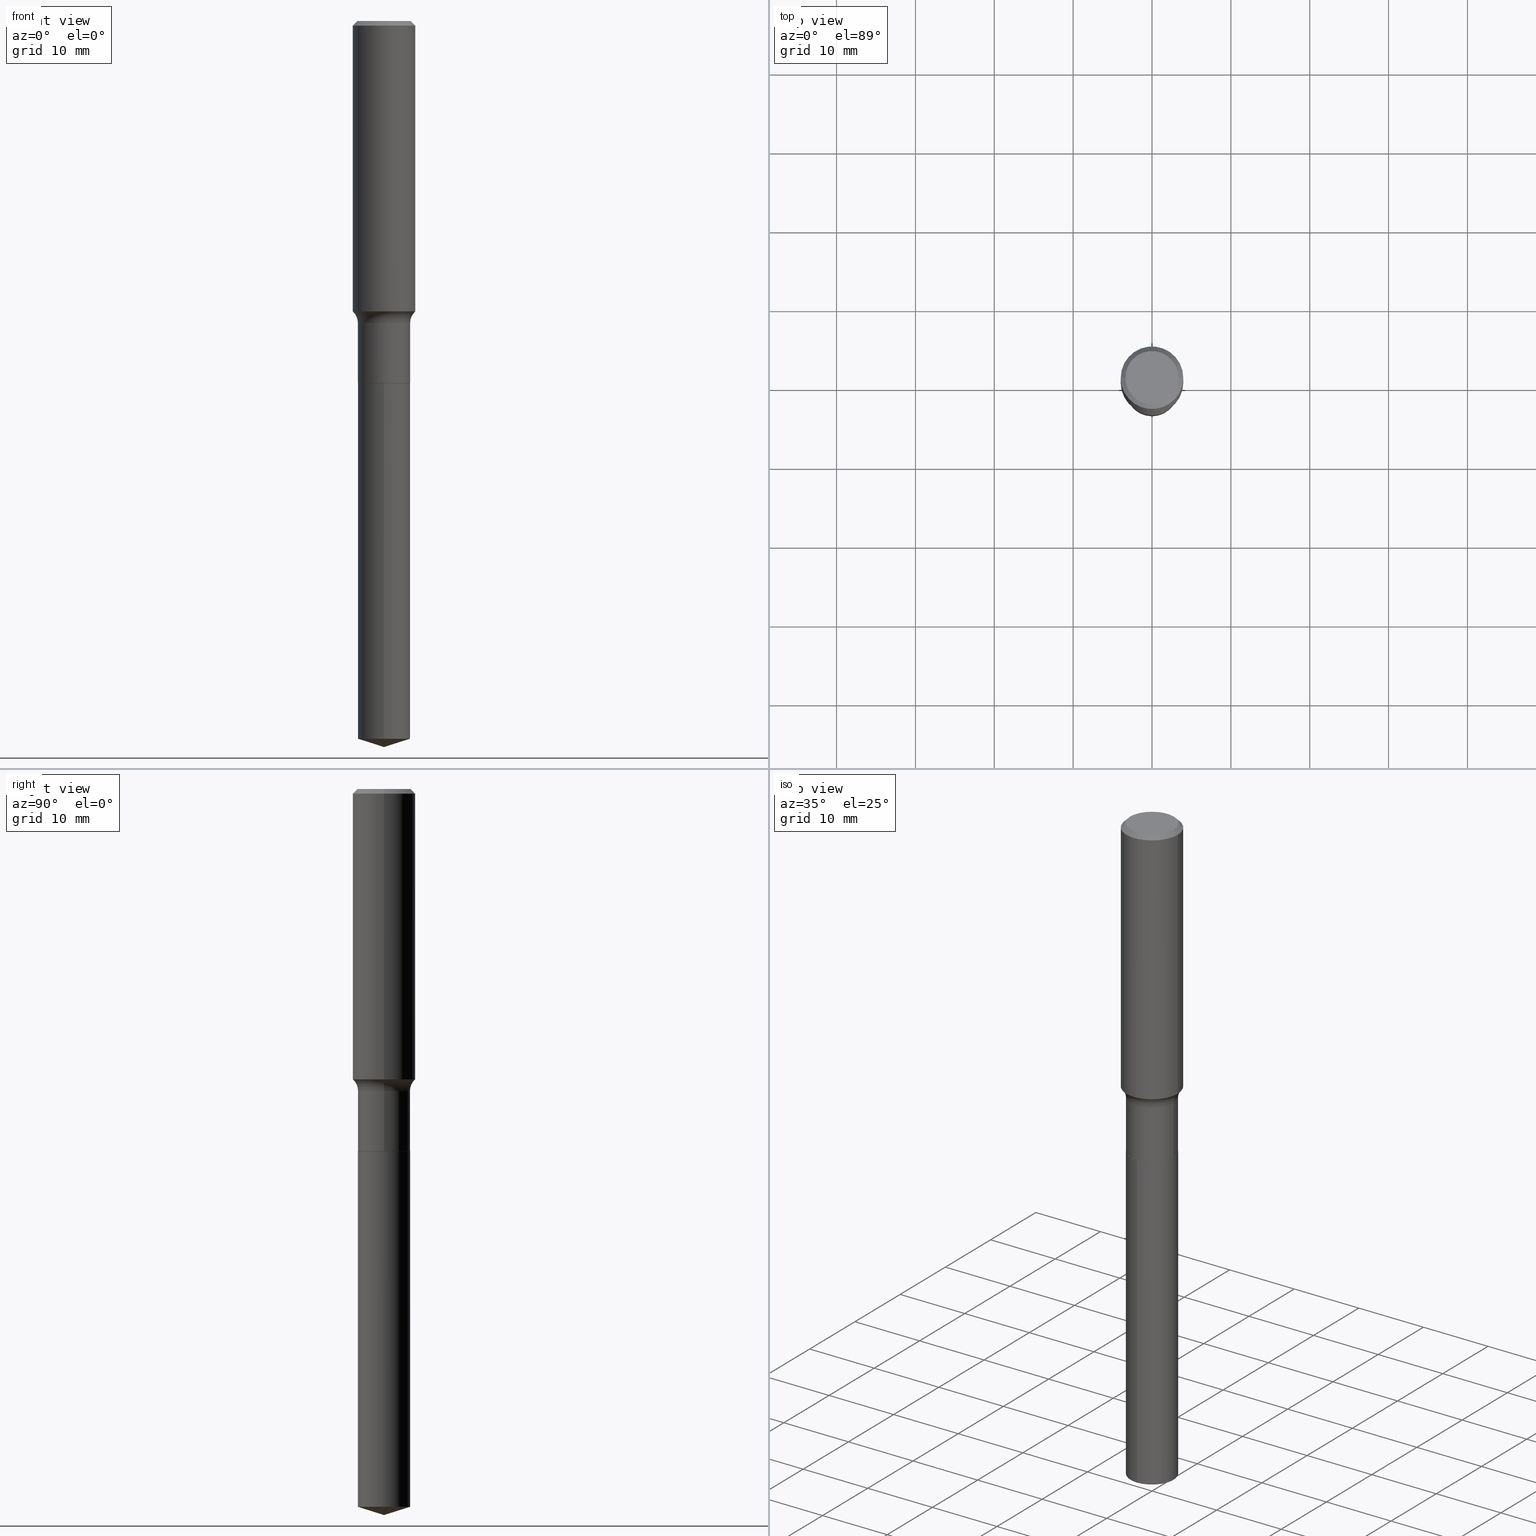
[diagram: canonical four-view strip — front | top / right | iso, engineering-drawing reading convention]
A machine part, canonical four-view strip (front | top / right | iso — engineering-drawing reading convention). The complete STEP part file that produces these views, byte-faithful:
ISO-10303-21;
HEADER;
FILE_DESCRIPTION (( 'STEP AP203' ),
    '1' );
FILE_NAME ('52341.STEP',
    '2024-04-19T13:47:22',
    ( '' ),
    ( '' ),
    'SwSTEP 2.0',
    'SolidWorks 2023',
    '' );
FILE_SCHEMA (( 'CONFIG_CONTROL_DESIGN' ));
ENDSEC;

DATA;
#1 = CALENDAR_DATE ( 2024, 19, 4 ) ;
#2 = DIRECTION ( 'NONE',  ( -2.445468197637385538E-29, 3.491482210318161491E-15, 1.000000000000000000 ) ) ;
#3 = AXIS2_PLACEMENT_3D ( 'NONE', #64, #370, #71 ) ;
#4 = CARTESIAN_POINT ( 'NONE',  ( 4.421163054702109447E-29, -6.312249112494524251E-15, -1.807900000000000507 ) ) ;
#5 = AXIS2_PLACEMENT_3D ( 'NONE', #278, #253, #20 ) ;
#6 = DIRECTION ( 'NONE',  ( 1.000000000000000000, -6.982962677686268288E-15, 4.876286914311434227E-29 ) ) ;
#7 = AXIS2_PLACEMENT_3D ( 'NONE', #289, #334, #328 ) ;
#8 = VECTOR ( 'NONE', #469, 39.37007874015748143 ) ;
#9 = CONICAL_SURFACE ( 'NONE', #393, 124.8659371009148060, 1.265363707695891016 ) ;
#10 = ORIENTED_EDGE ( 'NONE', *, *, #390, .F. ) ;
#11 = CARTESIAN_POINT ( 'NONE',  ( 0.2084999999999999354, -6.720054132871396951E-15, -1.507700000000000040 ) ) ;
#12 = ADVANCED_FACE ( 'NONE', ( #451 ), #185, .T. ) ;
#13 = FACE_OUTER_BOUND ( 'NONE', #106, .T. ) ;
#14 = ORIENTED_EDGE ( 'NONE', *, *, #382, .F. ) ;
#15 = CARTESIAN_POINT ( 'NONE',  ( 4.421163054702109447E-29, -6.312249112494524251E-15, -1.807900000000000507 ) ) ;
#16 = CARTESIAN_POINT ( 'NONE',  ( 3.545408421077758585E-29, -5.061903594706163333E-15, -1.449786810655948166 ) ) ;
#17 = CC_DESIGN_PERSON_AND_ORGANIZATION_ASSIGNMENT ( #342, #416, ( #239 ) ) ;
#18 = ORIENTED_EDGE ( 'NONE', *, *, #456, .F. ) ;
#19 = CC_DESIGN_SECURITY_CLASSIFICATION ( #239, ( #448 ) ) ;
#20 = DIRECTION ( 'NONE',  ( 1.000000000000000000, -6.982962677686269077E-15, 0.000000000000000000 ) ) ;
#21 = AXIS2_PLACEMENT_3D ( 'NONE', #208, #241, #23 ) ;
#22 = DIRECTION ( 'NONE',  ( -2.445468806185136597E-29, 3.491481338843145583E-15, 1.000000000000000000 ) ) ;
#23 = DIRECTION ( 'NONE',  ( -1.000000000000000000, 7.105427357601001859E-15, 0.000000000000000000 ) ) ;
#24 = EDGE_LOOP ( 'NONE', ( #81, #396, #195 ) ) ;
#25 = LINE ( 'NONE', #290, #225 ) ;
#26 = AXIS2_PLACEMENT_3D ( 'NONE', #173, #473, #97 ) ;
#27 = CARTESIAN_POINT ( 'NONE',  ( 5.731567514496448931E-31, -8.183159387913672688E-17, -0.02343750000000014225 ) ) ;
#28 = PERSON_AND_ORGANIZATION ( #436, #191 ) ;
#29 = EDGE_LOOP ( 'NONE', ( #87, #147, #311, #18 ) ) ;
#30 = DIRECTION ( 'NONE',  ( -2.445468806185136877E-29, 3.491481338843145188E-15, 1.000000000000000000 ) ) ;
#31 = FACE_OUTER_BOUND ( 'NONE', #264, .T. ) ;
#32 = APPROVAL ( #138, 'UNSPECIFIED' ) ;
#33 = CARTESIAN_POINT ( 'NONE',  ( 5.731567514496448931E-31, -8.183159387913672688E-17, -0.02343750000000014225 ) ) ;
#34 = DIRECTION ( 'NONE',  ( -6.982962677686265133E-15, -1.000000000000000000, 4.186740220175115908E-15 ) ) ;
#35 = APPROVAL_ROLE ( '' ) ;
#36 = ORIENTED_EDGE ( 'NONE', *, *, #134, .T. ) ;
#37 = AXIS2_PLACEMENT_3D ( 'NONE', #387, #117, #319 ) ;
#38 = DIRECTION ( 'NONE',  ( -2.445468197637385538E-29, 3.491482210318161491E-15, 1.000000000000000000 ) ) ;
#39 = ORIENTED_EDGE ( 'NONE', *, *, #287, .F. ) ;
#40 = COORDINATED_UNIVERSAL_TIME_OFFSET ( 5, 0, .BEHIND. ) ;
#41 = LINE ( 'NONE', #459, #104 ) ;
#42 = CIRCLE ( 'NONE', #37, 0.1304999999999999771 ) ;
#43 = ORIENTED_EDGE ( 'NONE', *, *, #467, .F. ) ;
#44 = CIRCLE ( 'NONE', #332, 0.07799999999999995826 ) ;
#45 = VERTEX_POINT ( 'NONE', #293 ) ;
#46 = CC_DESIGN_DATE_AND_TIME_ASSIGNMENT ( #303, #179, ( #454 ) ) ;
#47 = CARTESIAN_POINT ( 'NONE',  ( 5.731567514496448931E-31, -8.183159387913672688E-17, -0.02343750000000014225 ) ) ;
#48 = ORIENTED_EDGE ( 'NONE', *, *, #134, .F. ) ;
#49 = CONICAL_SURFACE ( 'NONE', #275, 0.1300000000000000044, 0.7853981633975507526 ) ;
#50 = EDGE_CURVE ( 'NONE', #485, #422, #250, .T. ) ;
#51 = CARTESIAN_POINT ( 'NONE',  ( 0.000000000000000000, 0.000000000000000000, 0.000000000000000000 ) ) ;
#52 = EDGE_CURVE ( 'NONE', #132, #350, #100, .T. ) ;
#53 = EDGE_LOOP ( 'NONE', ( #365, #43, #338, #428 ) ) ;
#54 = FACE_OUTER_BOUND ( 'NONE', #24, .T. ) ;
#55 = APPLICATION_PROTOCOL_DEFINITION ( 'international standard', 'config_control_design', 1994, #90 ) ;
#56 = CIRCLE ( 'NONE', #267, 0.1562500000000000000 ) ;
#57 = VECTOR ( 'NONE', #217, 39.37007874015748143 ) ;
#58 = DIRECTION ( 'NONE',  ( -2.445468197637385538E-29, 3.491482210318161491E-15, 1.000000000000000000 ) ) ;
#59 = CONICAL_SURFACE ( 'NONE', #353, 124.8659371009148060, 1.265363707695891016 ) ;
#60 = ORIENTED_EDGE ( 'NONE', *, *, #336, .F. ) ;
#61 = DIRECTION ( 'NONE',  ( 1.000000000000000000, -6.982962677686265922E-15, 0.000000000000000000 ) ) ;
#62 = DIRECTION ( 'NONE',  ( 2.438088387897960049E-29, -3.491481338843145188E-15, -1.000000000000000000 ) ) ;
#63 = DIRECTION ( 'NONE',  ( -6.982962677686265922E-15, -1.000000000000000000, 3.500519750498711532E-15 ) ) ;
#64 = CARTESIAN_POINT ( 'NONE',  ( 0.000000000000000000, 0.000000000000000000, 0.000000000000000000 ) ) ;
#65 = APPROVAL_DATE_TIME ( #184, #32 ) ;
#66 = LINE ( 'NONE', #109, #322 ) ;
#67 = COORDINATED_UNIVERSAL_TIME_OFFSET ( 5, 0, .BEHIND. ) ;
#68 = DIRECTION ( 'NONE',  ( -2.445468806185136597E-29, 3.491481338843145583E-15, 1.000000000000000000 ) ) ;
#69 = CARTESIAN_POINT ( 'NONE',  ( 0.1562500000000001665, -6.152991513094644084E-15, -1.449786810655948166 ) ) ;
#70 = APPROVAL_DATE_TIME ( #455, #244 ) ;
#71 = DIRECTION ( 'NONE',  ( 1.000000000000000000, -6.982962677686266711E-15, 4.876176775795935232E-29 ) ) ;
#72 = CALENDAR_DATE ( 2024, 19, 4 ) ;
#73 = DIRECTION ( 'NONE',  ( -6.982962677686265133E-15, -1.000000000000000000, 4.186740220175115908E-15 ) ) ;
#74 =( GEOMETRIC_REPRESENTATION_CONTEXT ( 3 ) GLOBAL_UNCERTAINTY_ASSIGNED_CONTEXT ( ( #248 ) ) GLOBAL_UNIT_ASSIGNED_CONTEXT ( ( #165, #429, #242 ) ) REPRESENTATION_CONTEXT ( 'NONE', 'WORKASPACE' ) );
#75 = APPLICATION_CONTEXT ( 'configuration controlled 3d designs of mechanical parts and assemblies' ) ;
#76 = ADVANCED_FACE ( 'NONE', ( #160 ), #441, .F. ) ;
#77 = FACE_OUTER_BOUND ( 'NONE', #349, .T. ) ;
#78 = ORIENTED_EDGE ( 'NONE', *, *, #80, .F. ) ;
#79 = DIRECTION ( 'NONE',  ( -2.445468197637385538E-29, 3.491482210318161491E-15, 1.000000000000000000 ) ) ;
#80 = EDGE_CURVE ( 'NONE', #157, #45, #152, .T. ) ;
#81 = ORIENTED_EDGE ( 'NONE', *, *, #282, .F. ) ;
#82 = FACE_OUTER_BOUND ( 'NONE', #308, .T. ) ;
#83 = CIRCLE ( 'NONE', #240, 0.1562500000000001665 ) ;
#84 = ORIENTED_EDGE ( 'NONE', *, *, #237, .F. ) ;
#85 = DIRECTION ( 'NONE',  ( -2.445468806185136597E-29, 3.491481338843145583E-15, 1.000000000000000000 ) ) ;
#86 = APPROVAL_STATUS ( 'not_yet_approved' ) ;
#87 = ORIENTED_EDGE ( 'NONE', *, *, #223, .F. ) ;
#88 = ORIENTED_EDGE ( 'NONE', *, *, #52, .F. ) ;
#89 = LINE ( 'NONE', #326, #386 ) ;
#90 = APPLICATION_CONTEXT ( 'configuration controlled 3d designs of mechanical parts and assemblies' ) ;
#91 = LENGTH_MEASURE_WITH_UNIT ( LENGTH_MEASURE( 0.02539999999999999897 ), #120 );
#92 = PERSON_AND_ORGANIZATION_ROLE ( 'creator' ) ;
#93 = EDGE_LOOP ( 'NONE', ( #325, #388, #39, #231 ) ) ;
#94 = ORIENTED_EDGE ( 'NONE', *, *, #420, .F. ) ;
#95 = MANIFOLD_SOLID_BREP ( 'Body-Move/Copy2[2]', #380 ) ;
#96 = CYLINDRICAL_SURFACE ( 'NONE', #176, 0.1562500000000000833 ) ;
#97 = DIRECTION ( 'NONE',  ( 1.000000000000000000, -6.982962677686265922E-15, 4.876176775795935793E-29 ) ) ;
#98 = EDGE_CURVE ( 'NONE', #132, #254, #83, .T. ) ;
#99 = CIRCLE ( 'NONE', #159, 0.1304999999999999771 ) ;
#100 = LINE ( 'NONE', #369, #286 ) ;
#101 = DIRECTION ( 'NONE',  ( -2.445468806185136597E-29, 3.491481338843145583E-15, 1.000000000000000000 ) ) ;
#102 = CC_DESIGN_PERSON_AND_ORGANIZATION_ASSIGNMENT ( #188, #105, ( #448 ) ) ;
#103 = CARTESIAN_POINT ( 'NONE',  ( -8.741345218090586963E-28, 1.248033081032214458E-13, 35.74507874015748143 ) ) ;
#104 = VECTOR ( 'NONE', #79, 39.37007874015748143 ) ;
#105 = PERSON_AND_ORGANIZATION_ROLE ( 'design_supplier' ) ;
#106 = EDGE_LOOP ( 'NONE', ( #48, #10, #397, #418 ) ) ;
#107 = CIRCLE ( 'NONE', #285, 0.1300000000000000044 ) ;
#108 = COORDINATED_UNIVERSAL_TIME_OFFSET ( 5, 0, .BEHIND. ) ;
#109 = CARTESIAN_POINT ( 'NONE',  ( -0.1300000000000000044, -5.388543556006393977E-15, -1.807900000000000507 ) ) ;
#110 = CARTESIAN_POINT ( 'NONE',  ( 4.421163054702109447E-29, -6.312249112494524251E-15, -1.807900000000000507 ) ) ;
#111 = VECTOR ( 'NONE', #374, 39.37007874015748143 ) ;
#112 = CONICAL_SURFACE ( 'NONE', #327, 0.1562500000000000000, 0.7853981633974452814 ) ;
#113 = COORDINATED_UNIVERSAL_TIME_OFFSET ( 5, 0, .BEHIND. ) ;
#114 = VERTEX_POINT ( 'NONE', #249 ) ;
#115 = ORIENTED_EDGE ( 'NONE', *, *, #128, .F. ) ;
#116 = VERTEX_POINT ( 'NONE', #475 ) ;
#117 = DIRECTION ( 'NONE',  ( -2.445468806185136597E-29, 3.491481338843145583E-15, 1.000000000000000000 ) ) ;
#118 = ADVANCED_FACE ( 'NONE', ( #54 ), #9, .T. ) ;
#119 = ORIENTED_EDGE ( 'NONE', *, *, #223, .T. ) ;
#120 =( LENGTH_UNIT ( ) NAMED_UNIT ( * ) SI_UNIT ( $, .METRE. ) );
#121 = FACE_OUTER_BOUND ( 'NONE', #266, .T. ) ;
#122 = AXIS2_PLACEMENT_3D ( 'NONE', #142, #444, #73 ) ;
#123 = CARTESIAN_POINT ( 'NONE',  ( -9.112766294379704315E-16, -0.1305000000000125504, -3.583853508051292547 ) ) ;
#124 = PERSON_AND_ORGANIZATION_ROLE ( 'design_owner' ) ;
#125 = VERTEX_POINT ( 'NONE', #246 ) ;
#126 = CARTESIAN_POINT ( 'NONE',  ( -8.741345218090586963E-28, 1.248033081032214458E-13, 35.74507874015748143 ) ) ;
#127 = EDGE_CURVE ( 'NONE', #356, #345, #360, .T. ) ;
#128 = EDGE_CURVE ( 'NONE', #254, #201, #44, .T. ) ;
#129 = EDGE_LOOP ( 'NONE', ( #329, #363 ) ) ;
#130 = LOCAL_TIME ( 9, 47, 22.00000000000000000, #113 ) ;
#131 = AXIS2_PLACEMENT_3D ( 'NONE', #51, #22, #357 ) ;
#132 = VERTEX_POINT ( 'NONE', #202 ) ;
#133 = LINE ( 'NONE', #218, #431 ) ;
#134 = EDGE_CURVE ( 'NONE', #462, #116, #200, .T. ) ;
#135 = PLANE ( 'NONE',  #258 ) ;
#136 = CARTESIAN_POINT ( 'NONE',  ( 0.000000000000000000, 0.000000000000000000, 0.000000000000000000 ) ) ;
#137 = CIRCLE ( 'NONE', #192, 0.1328125000000000000 ) ;
#138 = APPROVAL_STATUS ( 'not_yet_approved' ) ;
#139 = CIRCLE ( 'NONE', #424, 0.1305000000000000049 ) ;
#140 = DIRECTION ( 'NONE',  ( -2.445468806185136597E-29, 3.491481338843145583E-15, 1.000000000000000000 ) ) ;
#141 = DIRECTION ( 'NONE',  ( -6.982962677686265922E-15, -1.000000000000000000, 3.500519750498711532E-15 ) ) ;
#142 = CARTESIAN_POINT ( 'NONE',  ( 8.764200879124095995E-29, -1.251295919220774464E-14, -3.583853508051292991 ) ) ;
#143 = DIRECTION ( 'NONE',  ( -0.7071067811866199593, 7.493145998870616062E-15, 0.7071067811864750752 ) ) ;
#144 = DIRECTION ( 'NONE',  ( 1.000000000000000000, -6.982962677686268288E-15, 4.876286914311434227E-29 ) ) ;
#145 = APPROVAL_DATE_TIME ( #383, #204 ) ;
#146 = CC_DESIGN_PERSON_AND_ORGANIZATION_ASSIGNMENT ( #474, #124, ( #430 ) ) ;
#147 = ORIENTED_EDGE ( 'NONE', *, *, #228, .T. ) ;
#148 = DIRECTION ( 'NONE',  ( 6.982962677686265922E-15, 1.000000000000000000, -3.491482210318161491E-15 ) ) ;
#149 = AXIS2_PLACEMENT_3D ( 'NONE', #445, #140, #411 ) ;
#150 = EDGE_CURVE ( 'NONE', #114, #350, #321, .T. ) ;
#151 = CARTESIAN_POINT ( 'NONE',  ( 9.272582701670185380E-16, 0.1304999999999875149, -3.583853508051293879 ) ) ;
#152 = CIRCLE ( 'NONE', #5, 0.1305000000000000049 ) ;
#153 = VERTEX_POINT ( 'NONE', #432 ) ;
#154 = AXIS2_PLACEMENT_3D ( 'NONE', #4, #404, #440 ) ;
#155 = DIMENSIONAL_EXPONENTS ( 1.000000000000000000, 0.000000000000000000, 0.000000000000000000, 0.000000000000000000, 0.000000000000000000, 0.000000000000000000, 0.000000000000000000 ) ;
#156 = ORIENTED_EDGE ( 'NONE', *, *, #442, .T. ) ;
#157 = VERTEX_POINT ( 'NONE', #361 ) ;
#158 = CARTESIAN_POINT ( 'NONE',  ( 4.421163054702109447E-29, -6.312249112494524251E-15, -1.807900000000000507 ) ) ;
#159 = AXIS2_PLACEMENT_3D ( 'NONE', #487, #480, #379 ) ;
#160 = FACE_OUTER_BOUND ( 'NONE', #129, .T. ) ;
#161 = VERTEX_POINT ( 'NONE', #471 ) ;
#162 = ADVANCED_FACE ( 'NONE', ( #121 ), #362, .T. ) ;
#163 = CARTESIAN_POINT ( 'NONE',  ( 4.421163054702109447E-29, -6.312249112494524251E-15, -1.807900000000000507 ) ) ;
#164 = DIRECTION ( 'NONE',  ( 1.000000000000000000, -6.982962677686261977E-15, 0.000000000000000000 ) ) ;
#165 =( CONVERSION_BASED_UNIT ( 'INCH', #91 ) LENGTH_UNIT ( ) NAMED_UNIT ( #155 ) );
#166 = APPROVAL_PERSON_ORGANIZATION ( #465, #204, #35 ) ;
#167 = ADVANCED_BREP_SHAPE_REPRESENTATION ( '52341', ( #425, #95, #470 ), #74 ) ;
#168 = CARTESIAN_POINT ( 'NONE',  ( -0.1562500000000000000, 1.009256324509342545E-15, -0.02343750000000014225 ) ) ;
#169 = CIRCLE ( 'NONE', #21, 0.07799999999999995826 ) ;
#170 = PRODUCT_RELATED_PRODUCT_CATEGORY ( 'detail', '', ( #430 ) ) ;
#171 = DIRECTION ( 'NONE',  ( -2.445468806185136597E-29, 3.491481338843145583E-15, 1.000000000000000000 ) ) ;
#172 = ORIENTED_EDGE ( 'NONE', *, *, #317, .T. ) ;
#173 = CARTESIAN_POINT ( 'NONE',  ( 4.421163054702109447E-29, -6.312249112494524251E-15, -1.807900000000000507 ) ) ;
#174 = ORIENTED_EDGE ( 'NONE', *, *, #50, .F. ) ;
#175 = CYLINDRICAL_SURFACE ( 'NONE', #3, 0.1562500000000000833 ) ;
#176 = AXIS2_PLACEMENT_3D ( 'NONE', #136, #450, #181 ) ;
#177 = EDGE_CURVE ( 'NONE', #153, #271, #107, .T. ) ;
#178 = LINE ( 'NONE', #443, #270 ) ;
#179 = DATE_TIME_ROLE ( 'creation_date' ) ;
#180 = DIRECTION ( 'NONE',  ( -2.445468197637385538E-29, 3.491482210318161491E-15, 1.000000000000000000 ) ) ;
#181 = DIRECTION ( 'NONE',  ( 1.000000000000000000, -6.982962677686266711E-15, 4.876176775795935232E-29 ) ) ;
#182 = FACE_OUTER_BOUND ( 'NONE', #280, .T. ) ;
#183 = LOCAL_TIME ( 9, 47, 22.00000000000000000, #413 ) ;
#184 = DATE_AND_TIME ( #1, #263 ) ;
#185 = CYLINDRICAL_SURFACE ( 'NONE', #315, 0.1305000000000000049 ) ;
#186 = PERSON_AND_ORGANIZATION ( #436, #191 ) ;
#187 = DIRECTION ( 'NONE',  ( 1.000000000000000000, -6.982962677686266711E-15, 4.876176775795936353E-29 ) ) ;
#188 = PERSON_AND_ORGANIZATION ( #436, #191 ) ;
#189 = ORIENTED_EDGE ( 'NONE', *, *, #177, .T. ) ;
#190 = DIRECTION ( 'NONE',  ( 2.445468197637385258E-29, -3.491482210318161491E-15, -1.000000000000000000 ) ) ;
#191 = ORGANIZATION ( 'UNSPECIFIED', 'UNSPECIFIED', '' ) ;
#192 = AXIS2_PLACEMENT_3D ( 'NONE', #351, #304, #6 ) ;
#193 = CC_DESIGN_PERSON_AND_ORGANIZATION_ASSIGNMENT ( #186, #92, ( #448 ) ) ;
#194 = ORIENTED_EDGE ( 'NONE', *, *, #297, .F. ) ;
#195 = ORIENTED_EDGE ( 'NONE', *, *, #228, .F. ) ;
#196 = ORIENTED_EDGE ( 'NONE', *, *, #212, .T. ) ;
#197 = DIRECTION ( 'NONE',  ( 1.000000000000000000, -6.982962677686265922E-15, 0.000000000000000000 ) ) ;
#198 = APPROVAL_PERSON_ORGANIZATION ( #28, #244, #481 ) ;
#199 = ORIENTED_EDGE ( 'NONE', *, *, #210, .F. ) ;
#200 = LINE ( 'NONE', #318, #8 ) ;
#201 = VERTEX_POINT ( 'NONE', #276 ) ;
#202 = CARTESIAN_POINT ( 'NONE',  ( -0.1562500000000001665, -3.951680570081006003E-15, -1.449786810655948166 ) ) ;
#203 = MECHANICAL_CONTEXT ( 'NONE', #90, 'mechanical' ) ;
#204 = APPROVAL ( #86, 'UNSPECIFIED' ) ;
#205 = ORIENTED_EDGE ( 'NONE', *, *, #98, .F. ) ;
#206 = CONICAL_SURFACE ( 'NONE', #408, 0.1300000000000000044, 0.7853981633975507526 ) ;
#207 = DIRECTION ( 'NONE',  ( -6.982962677686265133E-15, -1.000000000000000000, 4.186740220175115908E-15 ) ) ;
#208 = CARTESIAN_POINT ( 'NONE',  ( -0.2084999999999999354, -3.782624810514001889E-15, -1.507700000000000040 ) ) ;
#209 = CARTESIAN_POINT ( 'NONE',  ( 0.1300000000000000044, -7.220034260593739238E-15, -1.807900000000000507 ) ) ;
#210 = EDGE_CURVE ( 'NONE', #157, #161, #89, .T. ) ;
#211 = CARTESIAN_POINT ( 'NONE',  ( 3.545408421077758585E-29, -5.061903594706163333E-15, -1.449786810655948166 ) ) ;
#212 = EDGE_CURVE ( 'NONE', #132, #161, #169, .T. ) ;
#213 = CARTESIAN_POINT ( 'NONE',  ( 0.1304999999999999771, -9.112766294380576006E-16, 6.363410692413695873E-30 ) ) ;
#214 = CARTESIAN_POINT ( 'NONE',  ( -3.977515959410825406E-47, 5.678838639081919634E-33, 1.626484030117578921E-18 ) ) ;
#215 = DIRECTION ( 'NONE',  ( -2.445468197637385538E-29, 3.491482210318161491E-15, 1.000000000000000000 ) ) ;
#216 = PERSON_AND_ORGANIZATION ( #436, #191 ) ;
#217 = DIRECTION ( 'NONE',  ( -2.445468806185136877E-29, 3.491481338843145188E-15, 1.000000000000000000 ) ) ;
#218 = CARTESIAN_POINT ( 'NONE',  ( 8.864822216435523626E-29, -1.265662301240333614E-14, -3.625000000000000444 ) ) ;
#219 = DIRECTION ( 'NONE',  ( -2.445468197637385538E-29, 3.491482210318161491E-15, 1.000000000000000000 ) ) ;
#220 = CALENDAR_DATE ( 2024, 19, 4 ) ;
#221 = ORIENTED_EDGE ( 'NONE', *, *, #488, .T. ) ;
#222 = FACE_OUTER_BOUND ( 'NONE', #376, .T. ) ;
#223 = EDGE_CURVE ( 'NONE', #422, #345, #433, .T. ) ;
#224 = DIRECTION ( 'NONE',  ( 2.445468806185136597E-29, -3.491481338843145583E-15, -1.000000000000000000 ) ) ;
#225 = VECTOR ( 'NONE', #340, 39.37007874015748143 ) ;
#226 = AXIS2_PLACEMENT_3D ( 'NONE', #398, #359, #207 ) ;
#227 = FACE_OUTER_BOUND ( 'NONE', #93, .T. ) ;
#228 = EDGE_CURVE ( 'NONE', #422, #485, #139, .T. ) ;
#229 = ORIENTED_EDGE ( 'NONE', *, *, #233, .T. ) ;
#230 = ADVANCED_FACE ( 'NONE', ( #77 ), #59, .T. ) ;
#231 = ORIENTED_EDGE ( 'NONE', *, *, #442, .F. ) ;
#232 = APPROVAL_PERSON_ORGANIZATION ( #305, #32, #367 ) ;
#233 = EDGE_CURVE ( 'NONE', #462, #114, #269, .T. ) ;
#234 = EDGE_LOOP ( 'NONE', ( #434, #119, #460, #94 ) ) ;
#235 = DIRECTION ( 'NONE',  ( -1.000000000000000000, 6.982962677686266711E-15, 0.000000000000000000 ) ) ;
#236 = ORIENTED_EDGE ( 'NONE', *, *, #456, .T. ) ;
#237 = EDGE_CURVE ( 'NONE', #271, #45, #178, .T. ) ;
#238 = CARTESIAN_POINT ( 'NONE',  ( 0.000000000000000000, 0.000000000000000000, 0.000000000000000000 ) ) ;
#239 = SECURITY_CLASSIFICATION ( '', '', #372 ) ;
#240 = AXIS2_PLACEMENT_3D ( 'NONE', #211, #405, #435 ) ;
#241 = DIRECTION ( 'NONE',  ( 7.105427357601001859E-15, 1.000000000000000000, -3.491481338843145583E-15 ) ) ;
#242 =( NAMED_UNIT ( * ) SI_UNIT ( $, .STERADIAN. ) SOLID_ANGLE_UNIT ( ) );
#243 = AXIS2_PLACEMENT_3D ( 'NONE', #483, #412, #34 ) ;
#244 = APPROVAL ( #259, 'UNSPECIFIED' ) ;
#245 = ORIENTED_EDGE ( 'NONE', *, *, #467, .T. ) ;
#246 = CARTESIAN_POINT ( 'NONE',  ( 8.864822216435523626E-29, -1.265662301240333614E-14, -3.625000000000000444 ) ) ;
#247 = AXIS2_PLACEMENT_3D ( 'NONE', #373, #180, #403 ) ;
#248 = UNCERTAINTY_MEASURE_WITH_UNIT (LENGTH_MEASURE( 1.000000000000000082E-05 ), #165, 'distance_accuracy_value', 'NONE');
#249 = CARTESIAN_POINT ( 'NONE',  ( -0.1328125000000000000, 9.683405275697749214E-16, 3.252968060228529177E-18 ) ) ;
#250 = CIRCLE ( 'NONE', #122, 0.1305000000000000049 ) ;
#251 = ADVANCED_FACE ( 'NONE', ( #298 ), #407, .T. ) ;
#252 = CARTESIAN_POINT ( 'NONE',  ( 5.731567514496448931E-31, -8.183159387913672688E-17, -0.02343750000000014225 ) ) ;
#253 = DIRECTION ( 'NONE',  ( -2.445468806185136597E-29, 3.491481338843145583E-15, 1.000000000000000000 ) ) ;
#254 = VERTEX_POINT ( 'NONE', #69 ) ;
#255 = ADVANCED_FACE ( 'NONE', ( #182 ), #453, .F. ) ;
#256 = FACE_OUTER_BOUND ( 'NONE', #352, .T. ) ;
#257 = CIRCLE ( 'NONE', #486, 0.1562500000000000000 ) ;
#258 = AXIS2_PLACEMENT_3D ( 'NONE', #214, #62, #410 ) ;
#259 = APPROVAL_STATUS ( 'not_yet_approved' ) ;
#260 = EDGE_CURVE ( 'NONE', #271, #153, #292, .T. ) ;
#261 = CARTESIAN_POINT ( 'NONE',  ( 9.272582701670185380E-16, 0.1304999999999937044, -1.807900000000000951 ) ) ;
#262 = DIRECTION ( 'NONE',  ( -6.659769872151631300E-15, -0.9537169507482265995, 0.3007057995042744514 ) ) ;
#263 = LOCAL_TIME ( 9, 47, 22.00000000000000000, #67 ) ;
#264 = EDGE_LOOP ( 'NONE', ( #245, #479, #14, #320 ) ) ;
#265 = ADVANCED_FACE ( 'NONE', ( #331 ), #112, .T. ) ;
#266 = EDGE_LOOP ( 'NONE', ( #199, #414, #156, #466 ) ) ;
#267 = AXIS2_PLACEMENT_3D ( 'NONE', #33, #101, #482 ) ;
#268 = AXIS2_PLACEMENT_3D ( 'NONE', #381, #419, #187 ) ;
#269 = CIRCLE ( 'NONE', #316, 0.1328125000000000000 ) ;
#270 = VECTOR ( 'NONE', #375, 39.37007874015748143 ) ;
#271 = VERTEX_POINT ( 'NONE', #209 ) ;
#272 = ORIENTED_EDGE ( 'NONE', *, *, #317, .F. ) ;
#273 = EDGE_LOOP ( 'NONE', ( #88, #300, #461, #194 ) ) ;
#274 = DIRECTION ( 'NONE',  ( 2.445468806185136597E-29, -3.491481338843145583E-15, -1.000000000000000000 ) ) ;
#275 = AXIS2_PLACEMENT_3D ( 'NONE', #158, #85, #197 ) ;
#276 = CARTESIAN_POINT ( 'NONE',  ( 0.1304999999999999771, -6.175383044011868116E-15, -1.507700000000000040 ) ) ;
#277 = AXIS2_PLACEMENT_3D ( 'NONE', #110, #190, #148 ) ;
#278 = CARTESIAN_POINT ( 'NONE',  ( 4.419940320299016646E-29, -6.310503371825102747E-15, -1.807400000000000562 ) ) ;
#279 = APPLICATION_PROTOCOL_DEFINITION ( 'international standard', 'config_control_design', 1994, #75 ) ;
#280 = EDGE_LOOP ( 'NONE', ( #449, #236 ) ) ;
#281 = DIRECTION ( 'NONE',  ( -0.7071067811865453523, 2.468850131082234184E-15, -0.7071067811865496822 ) ) ;
#282 = EDGE_CURVE ( 'NONE', #125, #422, #452, .T. ) ;
#283 = AXIS2_PLACEMENT_3D ( 'NONE', #16, #314, #468 ) ;
#284 = DESIGN_CONTEXT ( 'detailed design', #75, 'design' ) ;
#285 = AXIS2_PLACEMENT_3D ( 'NONE', #15, #171, #61 ) ;
#286 = VECTOR ( 'NONE', #30, 39.37007874015748143 ) ;
#287 = EDGE_CURVE ( 'NONE', #201, #161, #99, .T. ) ;
#288 = ORIENTED_EDGE ( 'NONE', *, *, #150, .F. ) ;
#289 = CARTESIAN_POINT ( 'NONE',  ( 3.687033319085330563E-29, -5.264106414573810909E-15, -1.507700000000000040 ) ) ;
#290 = CARTESIAN_POINT ( 'NONE',  ( 0.1562500000000000833, -1.091087918388479765E-15, 7.619026212181153180E-30 ) ) ;
#291 = DIRECTION ( 'NONE',  ( -2.445468806185136597E-29, 3.491481338843145583E-15, 1.000000000000000000 ) ) ;
#292 = CIRCLE ( 'NONE', #154, 0.1300000000000000044 ) ;
#293 = CARTESIAN_POINT ( 'NONE',  ( 0.1305000000000000049, -7.221780001263161531E-15, -1.807400000000000562 ) ) ;
#294 = CARTESIAN_POINT ( 'NONE',  ( 8.864824436117276829E-29, -1.265661986132397620E-14, -3.625000000000000444 ) ) ;
#295 = EDGE_LOOP ( 'NONE', ( #272, #189, #310, #78 ) ) ;
#296 = FACE_OUTER_BOUND ( 'NONE', #53, .T. ) ;
#297 = EDGE_CURVE ( 'NONE', #350, #116, #56, .T. ) ;
#298 = FACE_OUTER_BOUND ( 'NONE', #29, .T. ) ;
#299 = CALENDAR_DATE ( 2024, 19, 4 ) ;
#300 = ORIENTED_EDGE ( 'NONE', *, *, #98, .T. ) ;
#301 = VECTOR ( 'NONE', #215, 39.37007874015748143 ) ;
#302 = CARTESIAN_POINT ( 'NONE',  ( 4.419940320299016646E-29, -6.310503371825102747E-15, -1.807400000000000562 ) ) ;
#303 = DATE_AND_TIME ( #446, #458 ) ;
#304 = DIRECTION ( 'NONE',  ( -2.445468806185136597E-29, 3.491481338843145583E-15, 1.000000000000000000 ) ) ;
#305 = PERSON_AND_ORGANIZATION ( #436, #191 ) ;
#306 = ADVANCED_FACE ( 'NONE', ( #256 ), #135, .F. ) ;
#307 = AXIS2_PLACEMENT_3D ( 'NONE', #47, #274, #235 ) ;
#308 = EDGE_LOOP ( 'NONE', ( #389, #172, #60, #84 ) ) ;
#309 = ORIENTED_EDGE ( 'NONE', *, *, #282, .T. ) ;
#310 = ORIENTED_EDGE ( 'NONE', *, *, #237, .T. ) ;
#311 = ORIENTED_EDGE ( 'NONE', *, *, #420, .T. ) ;
#312 = CC_DESIGN_PERSON_AND_ORGANIZATION_ASSIGNMENT ( #216, #484, ( #454 ) ) ;
#313 = TOROIDAL_SURFACE ( 'NONE', #7, 0.2084999999999999354, 0.07799999999999995826 ) ;
#314 = DIRECTION ( 'NONE',  ( -2.445468806185136597E-29, 3.491481338843145583E-15, 1.000000000000000000 ) ) ;
#315 = AXIS2_PLACEMENT_3D ( 'NONE', #344, #2, #417 ) ;
#316 = AXIS2_PLACEMENT_3D ( 'NONE', #491, #291, #144 ) ;
#317 = EDGE_CURVE ( 'NONE', #153, #157, #66, .T. ) ;
#318 = CARTESIAN_POINT ( 'NONE',  ( 0.1562500000000000000, -1.153784406030938435E-15, -0.02343750000000014225 ) ) ;
#319 = DIRECTION ( 'NONE',  ( 1.000000000000000000, -6.982962677686263555E-15, 0.000000000000000000 ) ) ;
#320 = ORIENTED_EDGE ( 'NONE', *, *, #343, .F. ) ;
#321 = LINE ( 'NONE', #168, #323 ) ;
#322 = VECTOR ( 'NONE', #143, 39.37007874015748143 ) ;
#323 = VECTOR ( 'NONE', #281, 39.37007874015748143 ) ;
#324 = CARTESIAN_POINT ( 'NONE',  ( 9.272582701669747563E-16, 0.1304999999999936766, -1.807900000000000951 ) ) ;
#325 = ORIENTED_EDGE ( 'NONE', *, *, #336, .T. ) ;
#326 = CARTESIAN_POINT ( 'NONE',  ( -0.1304999999999999771, 9.272582701669305801E-16, -6.419210292782651118E-30 ) ) ;
#327 = AXIS2_PLACEMENT_3D ( 'NONE', #27, #224, #335 ) ;
#328 = DIRECTION ( 'NONE',  ( 1.000000000000000000, -6.982962677686265922E-15, 4.883557194083112340E-29 ) ) ;
#329 = ORIENTED_EDGE ( 'NONE', *, *, #260, .F. ) ;
#330 = LOCAL_TIME ( 9, 47, 22.00000000000000000, #40 ) ;
#331 = FACE_OUTER_BOUND ( 'NONE', #477, .T. ) ;
#332 = AXIS2_PLACEMENT_3D ( 'NONE', #11, #438, #164 ) ;
#333 = ADVANCED_FACE ( 'NONE', ( #296 ), #366, .F. ) ;
#334 = DIRECTION ( 'NONE',  ( -2.445468806185136597E-29, 3.491481338843145583E-15, 1.000000000000000000 ) ) ;
#335 = DIRECTION ( 'NONE',  ( -1.000000000000000000, 6.982962677686266711E-15, 0.000000000000000000 ) ) ;
#336 = EDGE_CURVE ( 'NONE', #45, #157, #423, .T. ) ;
#337 = CARTESIAN_POINT ( 'NONE',  ( -9.112766294380136216E-16, -0.1305000000000063054, -1.807899999999999840 ) ) ;
#338 = ORIENTED_EDGE ( 'NONE', *, *, #128, .T. ) ;
#339 = DATE_AND_TIME ( #220, #130 ) ;
#340 = DIRECTION ( 'NONE',  ( -2.445468806185136877E-29, 3.491481338843145188E-15, 1.000000000000000000 ) ) ;
#341 = CARTESIAN_POINT ( 'NONE',  ( 8.764200879124095995E-29, -1.251295919220774464E-14, -3.583853508051292991 ) ) ;
#342 = PERSON_AND_ORGANIZATION ( #436, #191 ) ;
#343 = EDGE_CURVE ( 'NONE', #254, #116, #25, .T. ) ;
#344 = CARTESIAN_POINT ( 'NONE',  ( 4.421163054702109447E-29, -6.312249112494524251E-15, -1.807900000000000507 ) ) ;
#345 = VERTEX_POINT ( 'NONE', #261 ) ;
#346 = CYLINDRICAL_SURFACE ( 'NONE', #268, 0.1304999999999999771 ) ;
#347 = CONICAL_SURFACE ( 'NONE', #307, 0.1562500000000000000, 0.7853981633974452814 ) ;
#348 = CLOSED_SHELL ( 'NONE', ( #12, #230, #118, #251, #255 ) ) ;
#349 = EDGE_LOOP ( 'NONE', ( #457, #309, #174 ) ) ;
#350 = VERTEX_POINT ( 'NONE', #490 ) ;
#351 = CARTESIAN_POINT ( 'NONE',  ( -7.955031918821650812E-47, 1.135767727816383927E-32, 3.252968060235157842E-18 ) ) ;
#352 = EDGE_LOOP ( 'NONE', ( #401, #229 ) ) ;
#353 = AXIS2_PLACEMENT_3D ( 'NONE', #103, #38, #141 ) ;
#354 = PRODUCT_DEFINITION_SHAPE ( 'NONE', 'NONE',  #454 ) ;
#355 = FACE_OUTER_BOUND ( 'NONE', #295, .T. ) ;
#356 = VERTEX_POINT ( 'NONE', #337 ) ;
#357 = DIRECTION ( 'NONE',  ( 1.000000000000000000, -6.982962677686266711E-15, 4.876176775795936353E-29 ) ) ;
#358 = DIRECTION ( 'NONE',  ( 1.000000000000000000, -6.982962677686265922E-15, 0.000000000000000000 ) ) ;
#359 = DIRECTION ( 'NONE',  ( -2.445468197637385538E-29, 3.491482210318161491E-15, 1.000000000000000000 ) ) ;
#360 = CIRCLE ( 'NONE', #226, 0.1305000000000000049 ) ;
#361 = CARTESIAN_POINT ( 'NONE',  ( -0.1305000000000000049, -4.860046623032525262E-15, -1.807400000000000562 ) ) ;
#362 = CYLINDRICAL_SURFACE ( 'NONE', #131, 0.1304999999999999771 ) ;
#363 = ORIENTED_EDGE ( 'NONE', *, *, #177, .F. ) ;
#364 = DIRECTION ( 'NONE',  ( 1.000000000000000000, -6.982962677686269077E-15, 0.000000000000000000 ) ) ;
#365 = ORIENTED_EDGE ( 'NONE', *, *, #212, .F. ) ;
#366 = TOROIDAL_SURFACE ( 'NONE', #149, 0.2084999999999999354, 0.07799999999999995826 ) ;
#367 = APPROVAL_ROLE ( '' ) ;
#368 = ADVANCED_FACE ( 'NONE', ( #415 ), #175, .T. ) ;
#369 = CARTESIAN_POINT ( 'NONE',  ( -0.1562500000000000833, 1.110223024625157132E-15, -7.685836078523293962E-30 ) ) ;
#370 = DIRECTION ( 'NONE',  ( -2.445468806185136597E-29, 3.491481338843145583E-15, 1.000000000000000000 ) ) ;
#371 = DIRECTION ( 'NONE',  ( -6.982962677686265133E-15, -1.000000000000000000, 4.186740220175115908E-15 ) ) ;
#372 = SECURITY_CLASSIFICATION_LEVEL ( 'unclassified' ) ;
#373 = CARTESIAN_POINT ( 'NONE',  ( 4.421163054702109447E-29, -6.312249112494524251E-15, -1.807900000000000507 ) ) ;
#374 = DIRECTION ( 'NONE',  ( 6.776566513254256560E-15, 0.9537169507482285979, 0.3007057995042677900 ) ) ;
#375 = DIRECTION ( 'NONE',  ( 0.7071067811866199593, -2.468850131083015945E-15, 0.7071067811864750752 ) ) ;
#376 = EDGE_LOOP ( 'NONE', ( #205, #196, #221, #115 ) ) ;
#377 = CIRCLE ( 'NONE', #283, 0.1562500000000001665 ) ;
#378 = ADVANCED_FACE ( 'NONE', ( #31 ), #96, .T. ) ;
#379 = DIRECTION ( 'NONE',  ( 1.000000000000000000, -6.982962677686263555E-15, 0.000000000000000000 ) ) ;
#380 = CLOSED_SHELL ( 'NONE', ( #394, #265, #378, #427, #400, #162, #333, #368, #472, #306, #76, #464 ) ) ;
#381 = CARTESIAN_POINT ( 'NONE',  ( 0.000000000000000000, 0.000000000000000000, 0.000000000000000000 ) ) ;
#382 = EDGE_CURVE ( 'NONE', #116, #350, #257, .T. ) ;
#383 = DATE_AND_TIME ( #72, #330 ) ;
#384 = ORIENTED_EDGE ( 'NONE', *, *, #382, .T. ) ;
#385 = EDGE_CURVE ( 'NONE', #125, #485, #133, .T. ) ;
#386 = VECTOR ( 'NONE', #402, 39.37007874015748143 ) ;
#387 = CARTESIAN_POINT ( 'NONE',  ( 3.687033319085330563E-29, -5.264106414573810909E-15, -1.507700000000000040 ) ) ;
#388 = ORIENTED_EDGE ( 'NONE', *, *, #210, .T. ) ;
#389 = ORIENTED_EDGE ( 'NONE', *, *, #260, .T. ) ;
#390 = EDGE_CURVE ( 'NONE', #114, #462, #137, .T. ) ;
#391 = AXIS2_PLACEMENT_3D ( 'NONE', #302, #68, #364 ) ;
#392 = DIRECTION ( 'NONE',  ( 0.000000000000000000, 0.000000000000000000, 1.000000000000000000 ) ) ;
#393 = AXIS2_PLACEMENT_3D ( 'NONE', #126, #58, #63 ) ;
#394 = ADVANCED_FACE ( 'NONE', ( #82 ), #49, .T. ) ;
#395 = DIRECTION ( 'NONE',  ( 1.000000000000000000, 0.000000000000000000, 0.000000000000000000 ) ) ;
#396 = ORIENTED_EDGE ( 'NONE', *, *, #385, .T. ) ;
#397 = ORIENTED_EDGE ( 'NONE', *, *, #150, .T. ) ;
#398 = CARTESIAN_POINT ( 'NONE',  ( 4.421163054702109447E-29, -6.312249112494524251E-15, -1.807900000000000507 ) ) ;
#399 = CC_DESIGN_APPROVAL ( #204, ( #454 ) ) ;
#400 = ADVANCED_FACE ( 'NONE', ( #227 ), #346, .T. ) ;
#401 = ORIENTED_EDGE ( 'NONE', *, *, #390, .T. ) ;
#402 = DIRECTION ( 'NONE',  ( -2.445468806185136877E-29, 3.491481338843145188E-15, 1.000000000000000000 ) ) ;
#403 = DIRECTION ( 'NONE',  ( -6.982962677686265133E-15, -1.000000000000000000, 4.186740220175115908E-15 ) ) ;
#404 = DIRECTION ( 'NONE',  ( -2.445468806185136597E-29, 3.491481338843145583E-15, 1.000000000000000000 ) ) ;
#405 = DIRECTION ( 'NONE',  ( -2.445468806185136597E-29, 3.491481338843145583E-15, 1.000000000000000000 ) ) ;
#406 = DIRECTION ( 'NONE',  ( -2.445468806185136597E-29, 3.491481338843145583E-15, 1.000000000000000000 ) ) ;
#407 = CYLINDRICAL_SURFACE ( 'NONE', #243, 0.1305000000000000049 ) ;
#408 = AXIS2_PLACEMENT_3D ( 'NONE', #163, #437, #358 ) ;
#409 = LINE ( 'NONE', #213, #57 ) ;
#410 = DIRECTION ( 'NONE',  ( -1.000000000000000000, 6.982962677686265922E-15, -4.876176775795935793E-29 ) ) ;
#411 = DIRECTION ( 'NONE',  ( 1.000000000000000000, -6.982962677686265922E-15, 4.883557194083112340E-29 ) ) ;
#412 = DIRECTION ( 'NONE',  ( -2.445468197637385538E-29, 3.491482210318161491E-15, 1.000000000000000000 ) ) ;
#413 = COORDINATED_UNIVERSAL_TIME_OFFSET ( 5, 0, .BEHIND. ) ;
#414 = ORIENTED_EDGE ( 'NONE', *, *, #80, .T. ) ;
#415 = FACE_OUTER_BOUND ( 'NONE', #273, .T. ) ;
#416 = PERSON_AND_ORGANIZATION_ROLE ( 'classification_officer' ) ;
#417 = DIRECTION ( 'NONE',  ( -6.982962677686265133E-15, -1.000000000000000000, 4.186740220175115908E-15 ) ) ;
#418 = ORIENTED_EDGE ( 'NONE', *, *, #297, .T. ) ;
#419 = DIRECTION ( 'NONE',  ( -2.445468806185136597E-29, 3.491481338843145583E-15, 1.000000000000000000 ) ) ;
#420 = EDGE_CURVE ( 'NONE', #485, #356, #41, .T. ) ;
#421 = CC_DESIGN_DATE_AND_TIME_ASSIGNMENT ( #339, #492, ( #239 ) ) ;
#422 = VERTEX_POINT ( 'NONE', #151 ) ;
#423 = CIRCLE ( 'NONE', #391, 0.1305000000000000049 ) ;
#424 = AXIS2_PLACEMENT_3D ( 'NONE', #341, #219, #371 ) ;
#425 = MANIFOLD_SOLID_BREP ( 'Body-Move/Copy2[1]', #348 ) ;
#426 = CARTESIAN_POINT ( 'NONE',  ( 0.1328125000000000000, -1.032472148179985084E-15, 3.252968060242010686E-18 ) ) ;
#427 = ADVANCED_FACE ( 'NONE', ( #222 ), #313, .F. ) ;
#428 = ORIENTED_EDGE ( 'NONE', *, *, #287, .T. ) ;
#429 =( NAMED_UNIT ( * ) PLANE_ANGLE_UNIT ( ) SI_UNIT ( $, .RADIAN. ) );
#430 = PRODUCT ( '52341', '52341', '', ( #203 ) ) ;
#431 = VECTOR ( 'NONE', #262, 39.37007874015748143 ) ;
#432 = CARTESIAN_POINT ( 'NONE',  ( -0.1300000000000000044, -5.385894328832282776E-15, -1.807900000000000507 ) ) ;
#433 = LINE ( 'NONE', #324, #301 ) ;
#434 = ORIENTED_EDGE ( 'NONE', *, *, #50, .T. ) ;
#435 = DIRECTION ( 'NONE',  ( 1.000000000000000000, -6.982962677686268288E-15, 0.000000000000000000 ) ) ;
#436 = PERSON ( 'UNSPECIFIED', 'UNSPECIFIED', 'UNSPECIFIED', ('UNSPECIFIED'), ('UNSPECIFIED'), ('UNSPECIFIED') ) ;
#437 = DIRECTION ( 'NONE',  ( -2.445468806185136597E-29, 3.491481338843145583E-15, 1.000000000000000000 ) ) ;
#438 = DIRECTION ( 'NONE',  ( -6.982962677686266711E-15, -1.000000000000000000, 3.491481338843145583E-15 ) ) ;
#439 = CIRCLE ( 'NONE', #247, 0.1305000000000000049 ) ;
#440 = DIRECTION ( 'NONE',  ( 1.000000000000000000, -6.982962677686265922E-15, 0.000000000000000000 ) ) ;
#441 = PLANE ( 'NONE',  #26 ) ;
#442 = EDGE_CURVE ( 'NONE', #45, #201, #409, .T. ) ;
#443 = CARTESIAN_POINT ( 'NONE',  ( 0.1300000000000000044, -7.220034260593739238E-15, -1.807900000000000507 ) ) ;
#444 = DIRECTION ( 'NONE',  ( -2.445468197637385538E-29, 3.491482210318161491E-15, 1.000000000000000000 ) ) ;
#445 = CARTESIAN_POINT ( 'NONE',  ( 3.687033319085330563E-29, -5.264106414573810909E-15, -1.507700000000000040 ) ) ;
#446 = CALENDAR_DATE ( 2024, 19, 4 ) ;
#447 = ORIENTED_EDGE ( 'NONE', *, *, #233, .F. ) ;
#448 = PRODUCT_DEFINITION_FORMATION_WITH_SPECIFIED_SOURCE ( 'ANY', '', #430, .NOT_KNOWN. ) ;
#449 = ORIENTED_EDGE ( 'NONE', *, *, #127, .T. ) ;
#450 = DIRECTION ( 'NONE',  ( -2.445468806185136597E-29, 3.491481338843145583E-15, 1.000000000000000000 ) ) ;
#451 = FACE_OUTER_BOUND ( 'NONE', #234, .T. ) ;
#452 = LINE ( 'NONE', #294, #111 ) ;
#453 = PLANE ( 'NONE',  #277 ) ;
#454 = PRODUCT_DEFINITION ( 'UNKNOWN', '', #448, #284 ) ;
#455 = DATE_AND_TIME ( #299, #183 ) ;
#456 = EDGE_CURVE ( 'NONE', #345, #356, #439, .T. ) ;
#457 = ORIENTED_EDGE ( 'NONE', *, *, #385, .F. ) ;
#458 = LOCAL_TIME ( 9, 47, 22.00000000000000000, #108 ) ;
#459 = CARTESIAN_POINT ( 'NONE',  ( -9.112766294380136216E-16, -0.1305000000000063054, -1.807899999999999840 ) ) ;
#460 = ORIENTED_EDGE ( 'NONE', *, *, #127, .F. ) ;
#461 = ORIENTED_EDGE ( 'NONE', *, *, #343, .T. ) ;
#462 = VERTEX_POINT ( 'NONE', #426 ) ;
#463 = CC_DESIGN_APPROVAL ( #32, ( #448 ) ) ;
#464 = ADVANCED_FACE ( 'NONE', ( #355 ), #206, .T. ) ;
#465 = PERSON_AND_ORGANIZATION ( #436, #191 ) ;
#466 = ORIENTED_EDGE ( 'NONE', *, *, #488, .F. ) ;
#467 = EDGE_CURVE ( 'NONE', #254, #132, #377, .T. ) ;
#468 = DIRECTION ( 'NONE',  ( 1.000000000000000000, -6.982962677686268288E-15, 0.000000000000000000 ) ) ;
#469 = DIRECTION ( 'NONE',  ( 0.7071067811865453523, -7.319954787623248157E-15, -0.7071067811865496822 ) ) ;
#470 = AXIS2_PLACEMENT_3D ( 'NONE', #238, #392, #395 ) ;
#471 = CARTESIAN_POINT ( 'NONE',  ( -0.1304999999999999771, -4.860046623032525262E-15, -1.507700000000000040 ) ) ;
#472 = ADVANCED_FACE ( 'NONE', ( #13 ), #347, .T. ) ;
#473 = DIRECTION ( 'NONE',  ( -2.438088387897960049E-29, 3.491481338843145188E-15, 1.000000000000000000 ) ) ;
#474 = PERSON_AND_ORGANIZATION ( #436, #191 ) ;
#475 = CARTESIAN_POINT ( 'NONE',  ( 0.1562500000000000000, -1.172919512267615999E-15, -0.02343750000000014225 ) ) ;
#476 = CC_DESIGN_APPROVAL ( #244, ( #239 ) ) ;
#477 = EDGE_LOOP ( 'NONE', ( #447, #36, #384, #288 ) ) ;
#478 = DIRECTION ( 'NONE',  ( 1.000000000000000000, -6.982962677686266711E-15, 0.000000000000000000 ) ) ;
#479 = ORIENTED_EDGE ( 'NONE', *, *, #52, .T. ) ;
#480 = DIRECTION ( 'NONE',  ( -2.445468806185136597E-29, 3.491481338843145583E-15, 1.000000000000000000 ) ) ;
#481 = APPROVAL_ROLE ( '' ) ;
#482 = DIRECTION ( 'NONE',  ( 1.000000000000000000, -6.982962677686266711E-15, 0.000000000000000000 ) ) ;
#483 = CARTESIAN_POINT ( 'NONE',  ( 4.421163054702109447E-29, -6.312249112494524251E-15, -1.807900000000000507 ) ) ;
#484 = PERSON_AND_ORGANIZATION_ROLE ( 'creator' ) ;
#485 = VERTEX_POINT ( 'NONE', #123 ) ;
#486 = AXIS2_PLACEMENT_3D ( 'NONE', #252, #406, #478 ) ;
#487 = CARTESIAN_POINT ( 'NONE',  ( 3.687033319085330563E-29, -5.264106414573810909E-15, -1.507700000000000040 ) ) ;
#488 = EDGE_CURVE ( 'NONE', #161, #201, #42, .T. ) ;
#489 = SHAPE_DEFINITION_REPRESENTATION ( #354, #167 ) ;
#490 = CARTESIAN_POINT ( 'NONE',  ( -0.1562500000000000000, -1.461644569667492947E-15, -0.02343750000000014225 ) ) ;
#491 = CARTESIAN_POINT ( 'NONE',  ( -7.955031918821650812E-47, 1.135767727816383927E-32, 3.252968060235157842E-18 ) ) ;
#492 = DATE_TIME_ROLE ( 'classification_date' ) ;
ENDSEC;
END-ISO-10303-21;
